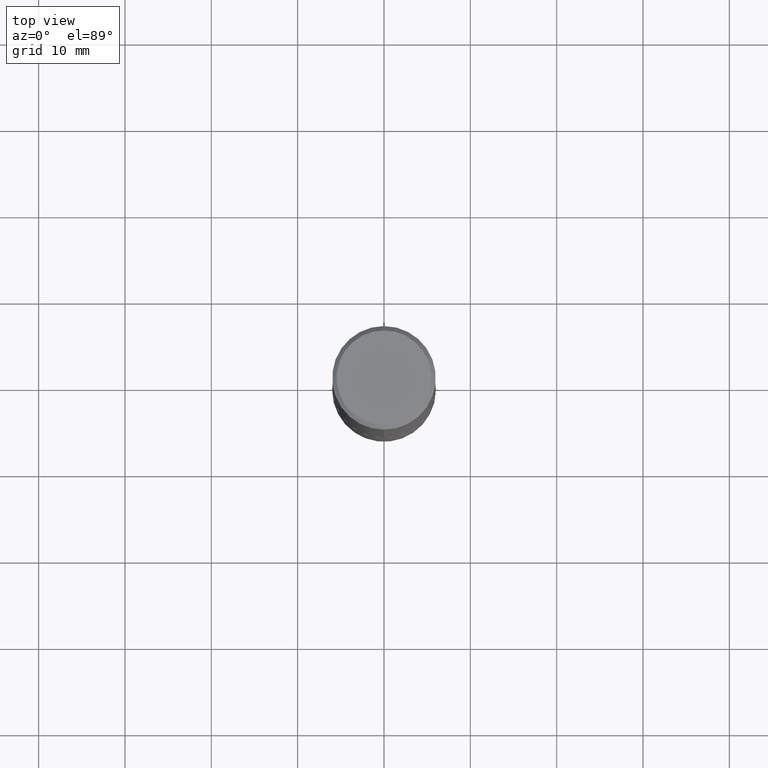
[diagram: clean part render]
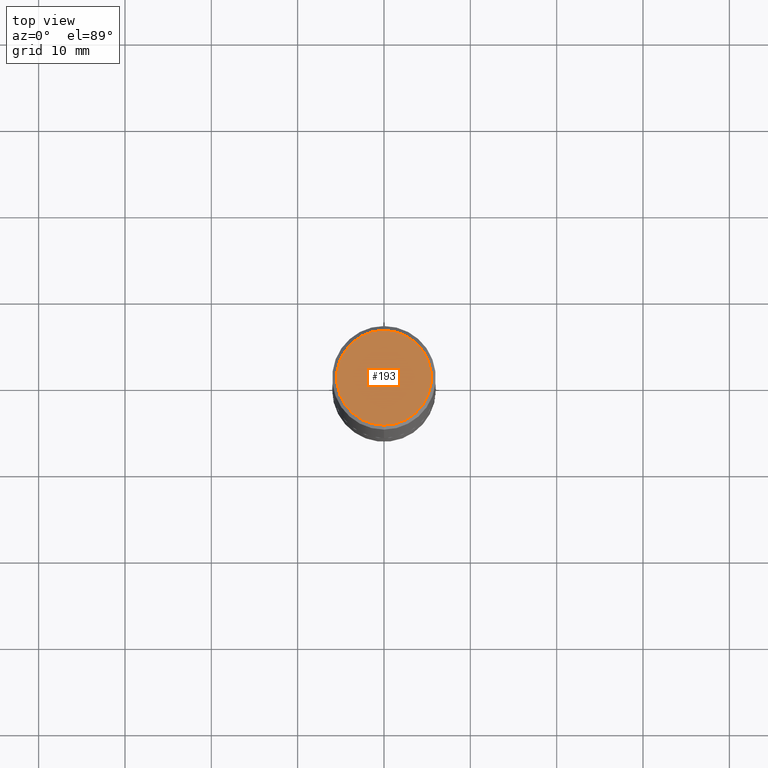
[diagram: same view with one face highlighted and labeled with its STEP entity id]
A machine part, top view. The second image highlights one B-rep face of the part: STEP entity #193.
In plain terms, the highlighted planar face has unit normal (0, -0, -1).
Its self-contained STEP definition (entity closure, byte-faithful):
#3 = CARTESIAN_POINT ( 'NONE',  ( -1.551844647095921325E-15, -0.2162000000000003364, 4.541486610994609223E-16 ) ) ;
#49 = PLANE ( 'NONE',  #110 ) ;
#52 = DIRECTION ( 'NONE',  ( -2.448559348628265803E-29, 3.487055506161832692E-15, 1.000000000000000000 ) ) ;
#68 = DIRECTION ( 'NONE',  ( -2.448559348628265803E-29, 3.487055506161832692E-15, 1.000000000000000000 ) ) ;
#91 = AXIS2_PLACEMENT_3D ( 'NONE', #142, #68, #321 ) ;
#110 = AXIS2_PLACEMENT_3D ( 'NONE', #317, #166, #131 ) ;
#115 = VERTEX_POINT ( 'NONE', #181 ) ;
#131 = DIRECTION ( 'NONE',  ( 6.982962677686265922E-15, 1.000000000000000000, -3.487055506161832692E-15 ) ) ;
#142 = CARTESIAN_POINT ( 'NONE',  ( 7.339623721700842892E-45, -1.045254440177283923E-30, -2.997527393327285821E-16 ) ) ;
#150 = AXIS2_PLACEMENT_3D ( 'NONE', #158, #52, #254 ) ;
#158 = CARTESIAN_POINT ( 'NONE',  ( 7.339623721700842892E-45, -1.045254440177283923E-30, -2.997527393327285821E-16 ) ) ;
#165 = EDGE_LOOP ( 'NONE', ( #238, #170 ) ) ;
#166 = DIRECTION ( 'NONE',  ( 2.448559348628265523E-29, -3.487055506161832692E-15, -1.000000000000000000 ) ) ;
#170 = ORIENTED_EDGE ( 'NONE', *, *, #255, .T. ) ;
#181 = CARTESIAN_POINT ( 'NONE',  ( 1.579546157692634805E-15, 0.2162000000000003364, -1.053654139764917988E-15 ) ) ;
#184 = CIRCLE ( 'NONE', #91, 0.2162000000000003364 ) ;
#190 = FACE_OUTER_BOUND ( 'NONE', #165, .T. ) ;
#193 = ADVANCED_FACE ( 'NONE', ( #190 ), #49, .F. ) ;
#238 = ORIENTED_EDGE ( 'NONE', *, *, #313, .T. ) ;
#254 = DIRECTION ( 'NONE',  ( -6.982962677686265922E-15, -1.000000000000000000, 3.487055506161832692E-15 ) ) ;
#255 = EDGE_CURVE ( 'NONE', #303, #115, #333, .T. ) ;
#303 = VERTEX_POINT ( 'NONE', #3 ) ;
#313 = EDGE_CURVE ( 'NONE', #115, #303, #184, .T. ) ;
#317 = CARTESIAN_POINT ( 'NONE',  ( 1.509716530915773084E-15, 0.2162000000000003364, -9.037777700985536475E-16 ) ) ;
#321 = DIRECTION ( 'NONE',  ( -6.982962677686265922E-15, -1.000000000000000000, 3.487055506161832692E-15 ) ) ;
#333 = CIRCLE ( 'NONE', #150, 0.2162000000000003364 ) ;